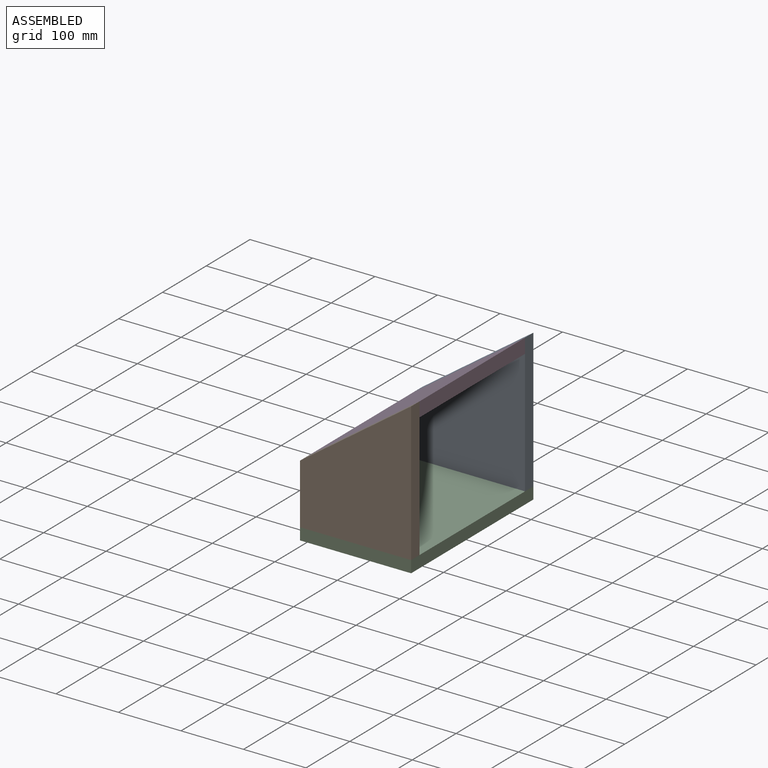
[diagram: assembled view]
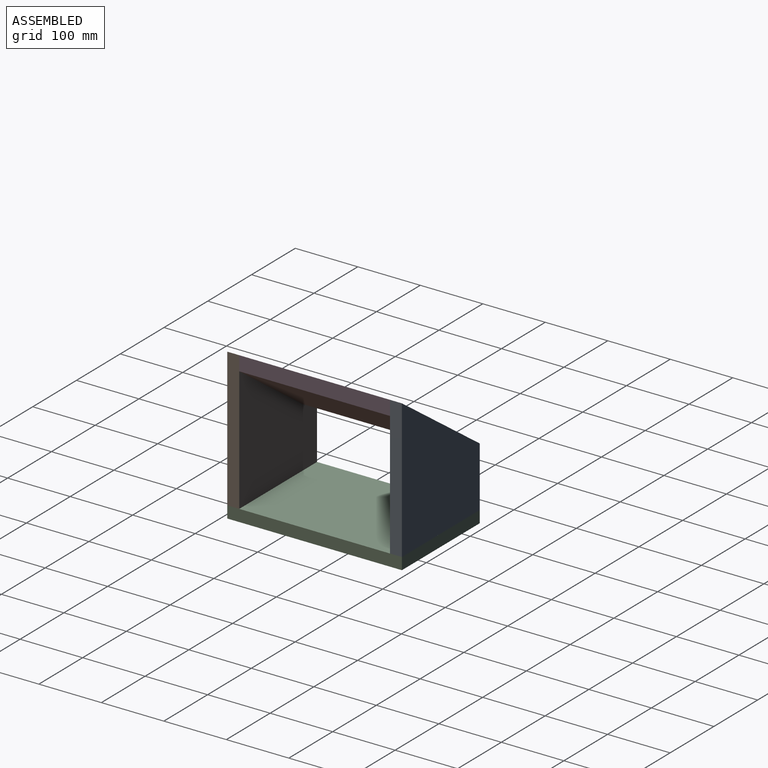
[diagram: assembled view, second angle]
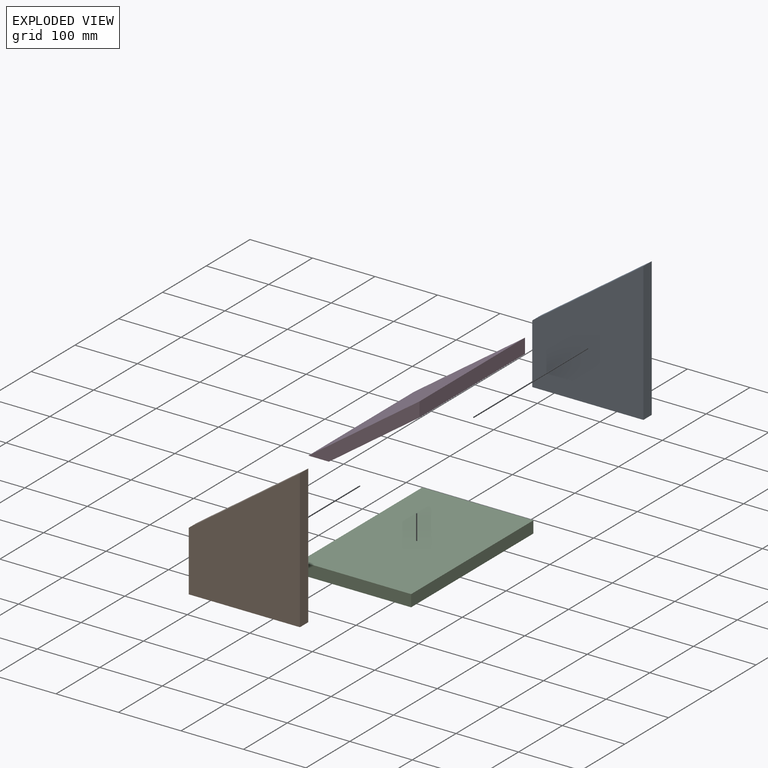
[diagram: exploded view]
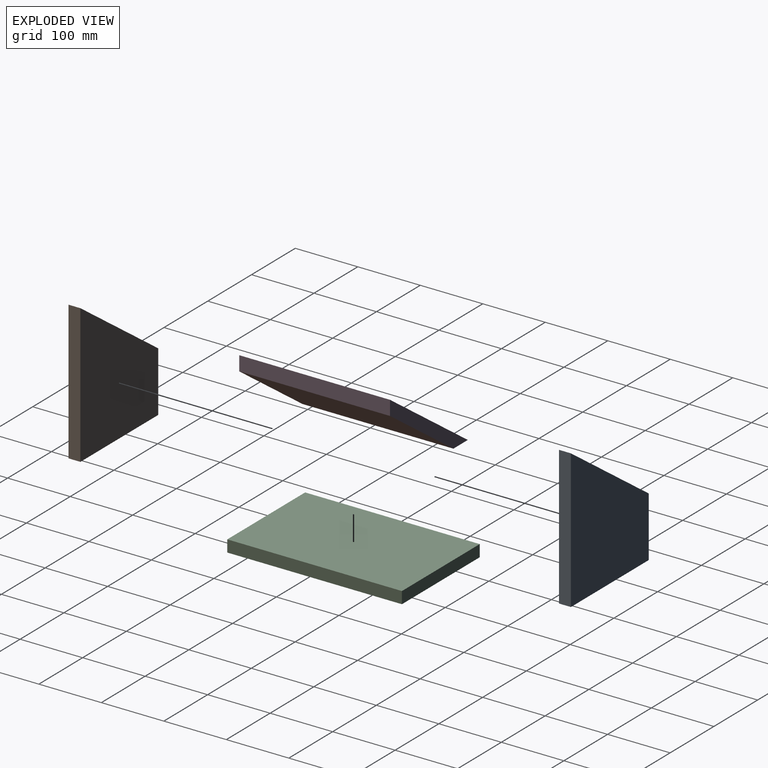
[diagram: exploded view, second angle]
ASSEMBLY  parts=4 mates=9
PART A: 6 faces, bbox 177.8x19.1x222.3 mm
  f0: plane 96.32x19.05mm, normal (-1,0,0), area 1834.8mm2, adj f1,f3,f4,f5
  f1: plane 177.8x19.05mm, normal (0,0,-1), area 3387.1mm2, adj f0,f2,f4,f5
  f2: plane 222.25x19.05mm, normal (1,0,0), area 4233.9mm2, adj f1,f3,f4,f5
  f3: plane 177.8x125.93mm, normal (-0.58,0,0.82), area 4150.6mm2, adj f0,f2,f4,f5
  f4: plane 222.25x177.8mm, normal (0,-1,0), area 28320.6mm2, adj f0,f1,f2,f3
  f5: plane 222.25x177.8mm, normal (0,1,0), area 28320.6mm2, adj f0,f1,f2,f3
PART B: same geometry as A
PART C: 6 faces, bbox 177.8x279.4x19.1 mm
  f0: plane 177.8x19.05mm, normal (0,1,0), area 3387.1mm2, adj f1,f3,f4,f5
  f1: plane 279.4x19.05mm, normal (-1,0,0), area 5322.6mm2, adj f0,f2,f4,f5
  f2: plane 177.8x19.05mm, normal (0,-1,0), area 3387.1mm2, adj f1,f3,f4,f5
  f3: plane 279.4x19.05mm, normal (1,0,0), area 5322.6mm2, adj f0,f2,f4,f5
  f4: plane 279.4x177.8mm, normal (0,0,1), area 49677.3mm2, adj f0,f1,f2,f3
  f5: plane 279.4x177.8mm, normal (0,0,-1), area 49677.3mm2, adj f0,f1,f2,f3
PART D: 6 faces, bbox 177.8x241.3x125.9 mm
  f0: plane 241.3x23.34mm, normal (1,0,0), area 5633mm2, adj f1,f3,f4,f5
  f1: plane 241.3x177.8mm, normal (-0.58,0,0.82), area 52574.6mm2, adj f0,f2,f4,f5
  f2: plane 241.3x32.96mm, normal (0,0,-1), area 7953mm2, adj f1,f3,f4,f5
  f3: plane 241.3x144.84mm, normal (0.58,0,-0.82), area 42828.8mm2, adj f0,f2,f4,f5
  f4: plane 177.8x125.93mm, normal (0,-1,0), area 3765.9mm2, adj f0,f1,f2,f3
  f5: plane 177.8x125.93mm, normal (0,1,0), area 3765.9mm2, adj f0,f1,f2,f3
PLACE A rot(axis=(-0.08,-0.37,-0.93),0deg) t=(-142.85,55.36,76.15)mm
PLACE B t=(-142.85,-204.99,76.15)mm
PLACE C rot(axis=(-0.08,-0.37,-0.93),0deg) t=(-53.95,-84.34,57.1)mm
PLACE D rot(axis=(-0.08,-0.37,-0.93),0deg) t=(-117.45,36.31,147.07)mm
MATE planar D.f5 <-> A.f4  axis (0,1,0) through (-46,36.31,229.8)mm
MATE planar B.f1 <-> C.f4  axis (0,0,-1) through (34.95,-224.04,76.15)mm
MATE planar B.f2 <-> C.f3  axis (1,0,0) through (34.95,-204.99,76.15)mm
MATE planar B.f4 <-> C.f2  axis (0,-1,0) through (-42.24,-224.04,159.94)mm
MATE planar A.f1 <-> C.f4  axis (0,0,-1) through (-53.95,55.36,76.15)mm
MATE planar A.f5 <-> C.f0  axis (0,1,0) through (-42.24,55.36,159.94)mm
MATE planar D.f0 <-> A.f2  axis (1,0,0) through (34.95,-84.34,286.73)mm
MATE planar A.f2 <-> C.f3  axis (1,0,0) through (34.95,45.83,187.27)mm
MATE planar B.f3 <-> D.f1  axis (-0.58,0,0.82) through (-142.85,-224.04,172.47)mm
